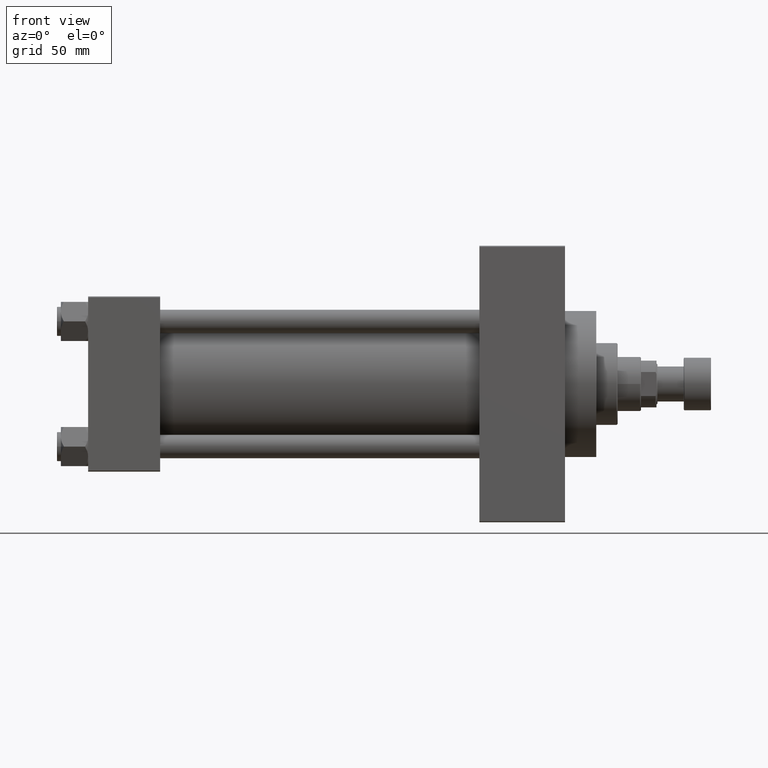
[diagram: clean part render]
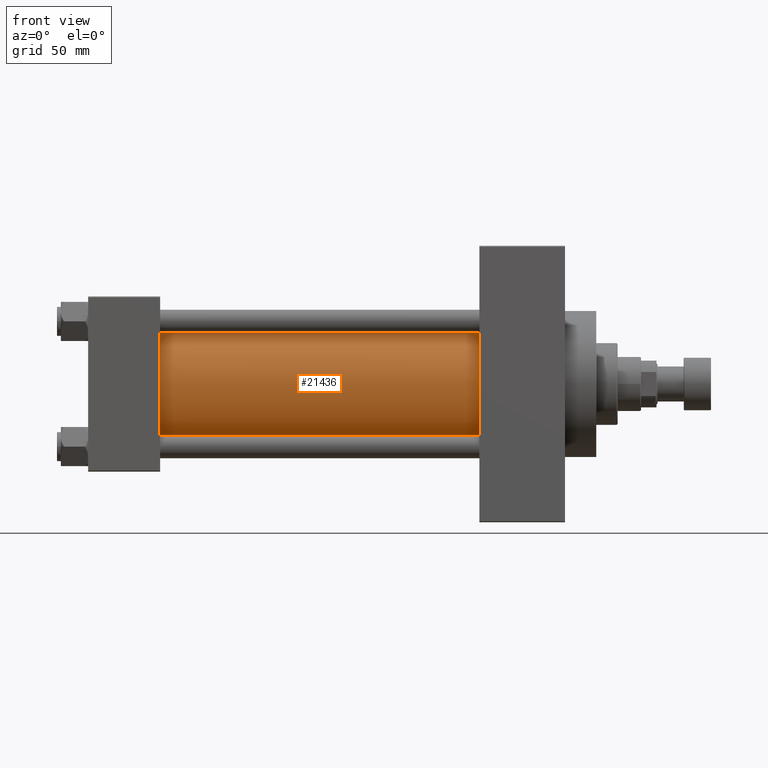
[diagram: same view with one face highlighted and labeled with its STEP entity id]
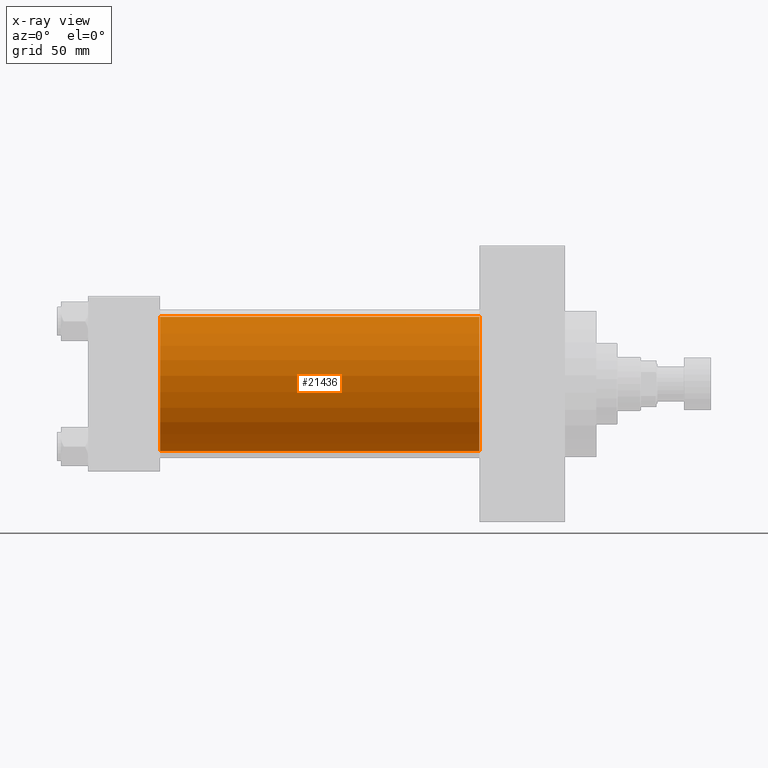
[diagram: x-ray of the same camera — body ghosted, the highlighted face saturated]
A machine part, front view. The second image highlights one B-rep face of the part: STEP entity #21436.
The next image is the same camera in x-ray: the body ghosted, the highlighted face saturated — about 0% of this face is hidden behind the body in this view.
In plain terms, the highlighted cylindrical surface (partial cylindrical patch) has radius 34.5 mm, axis along (-1, -0, -0).
Its self-contained STEP definition (entity closure, byte-faithful):
#91 = CARTESIAN_POINT ( 'NONE',  ( 37.00000000000000711, -2.602085213965210642E-15, 34.50000000000000000 ) ) ;
#117 = VECTOR ( 'NONE', #10969, 1000.000000000000000 ) ;
#2692 = AXIS2_PLACEMENT_3D ( 'NONE', #39618, #47547, #14507 ) ;
#3903 = CIRCLE ( 'NONE', #46247, 34.50000000000000000 ) ;
#3989 = EDGE_CURVE ( 'NONE', #37892, #17408, #3903, .T. ) ;
#4441 = CARTESIAN_POINT ( 'NONE',  ( 201.0000000000000000, -2.602085213965210642E-15, 34.50000000000000000 ) ) ;
#9818 = DIRECTION ( 'NONE',  ( 0.000000000000000000, 0.000000000000000000, -1.000000000000000000 ) ) ;
#10413 = FACE_OUTER_BOUND ( 'NONE', #23287, .T. ) ;
#10533 = EDGE_CURVE ( 'NONE', #46987, #37892, #41106, .T. ) ;
#10969 = DIRECTION ( 'NONE',  ( -1.000000000000000000, -0.000000000000000000, -0.000000000000000000 ) ) ;
#11789 = CARTESIAN_POINT ( 'NONE',  ( 201.0000000000000000, 1.622946243093158675E-15, -34.50000000000000000 ) ) ;
#13200 = DIRECTION ( 'NONE',  ( 0.000000000000000000, 0.000000000000000000, 1.000000000000000000 ) ) ;
#13926 = CARTESIAN_POINT ( 'NONE',  ( 201.0000000000000000, -2.602085213965210642E-15, 0.000000000000000000 ) ) ;
#14391 = ORIENTED_EDGE ( 'NONE', *, *, #10533, .T. ) ;
#14507 = DIRECTION ( 'NONE',  ( 0.000000000000000000, 0.000000000000000000, 1.000000000000000000 ) ) ;
#16576 = CARTESIAN_POINT ( 'NONE',  ( 37.00000000000000711, -2.602085213965210642E-15, 0.000000000000000000 ) ) ;
#17408 = VERTEX_POINT ( 'NONE', #47032 ) ;
#20523 = ORIENTED_EDGE ( 'NONE', *, *, #21849, .F. ) ;
#21164 = DIRECTION ( 'NONE',  ( 1.000000000000000000, 0.000000000000000000, 0.000000000000000000 ) ) ;
#21436 = ADVANCED_FACE ( 'NONE', ( #10413 ), #21512, .T. ) ;
#21512 = CYLINDRICAL_SURFACE ( 'NONE', #2692, 34.50000000000000000 ) ;
#21849 = EDGE_CURVE ( 'NONE', #46987, #28506, #29634, .T. ) ;
#22883 = LINE ( 'NONE', #11789, #40794 ) ;
#23287 = EDGE_LOOP ( 'NONE', ( #40279, #20523, #14391, #28817 ) ) ;
#24456 = CARTESIAN_POINT ( 'NONE',  ( 201.0000000000000000, -2.602085213965210642E-15, 34.50000000000000000 ) ) ;
#28506 = VERTEX_POINT ( 'NONE', #36877 ) ;
#28817 = ORIENTED_EDGE ( 'NONE', *, *, #3989, .T. ) ;
#29634 = CIRCLE ( 'NONE', #35820, 34.50000000000000000 ) ;
#32004 = EDGE_CURVE ( 'NONE', #28506, #17408, #22883, .T. ) ;
#34239 = DIRECTION ( 'NONE',  ( -1.000000000000000000, -0.000000000000000000, -0.000000000000000000 ) ) ;
#35820 = AXIS2_PLACEMENT_3D ( 'NONE', #13926, #21164, #9818 ) ;
#36877 = CARTESIAN_POINT ( 'NONE',  ( 201.0000000000000000, 1.622946243093158675E-15, -34.50000000000000000 ) ) ;
#37892 = VERTEX_POINT ( 'NONE', #91 ) ;
#39618 = CARTESIAN_POINT ( 'NONE',  ( 201.0000000000000000, -2.602085213965210642E-15, 0.000000000000000000 ) ) ;
#40279 = ORIENTED_EDGE ( 'NONE', *, *, #32004, .F. ) ;
#40794 = VECTOR ( 'NONE', #34239, 1000.000000000000000 ) ;
#41106 = LINE ( 'NONE', #4441, #117 ) ;
#46247 = AXIS2_PLACEMENT_3D ( 'NONE', #16576, #46249, #13200 ) ;
#46249 = DIRECTION ( 'NONE',  ( 1.000000000000000000, -0.000000000000000000, 0.000000000000000000 ) ) ;
#46987 = VERTEX_POINT ( 'NONE', #24456 ) ;
#47032 = CARTESIAN_POINT ( 'NONE',  ( 37.00000000000000711, 1.622946243093158675E-15, -34.50000000000000000 ) ) ;
#47547 = DIRECTION ( 'NONE',  ( -1.000000000000000000, -0.000000000000000000, -0.000000000000000000 ) ) ;